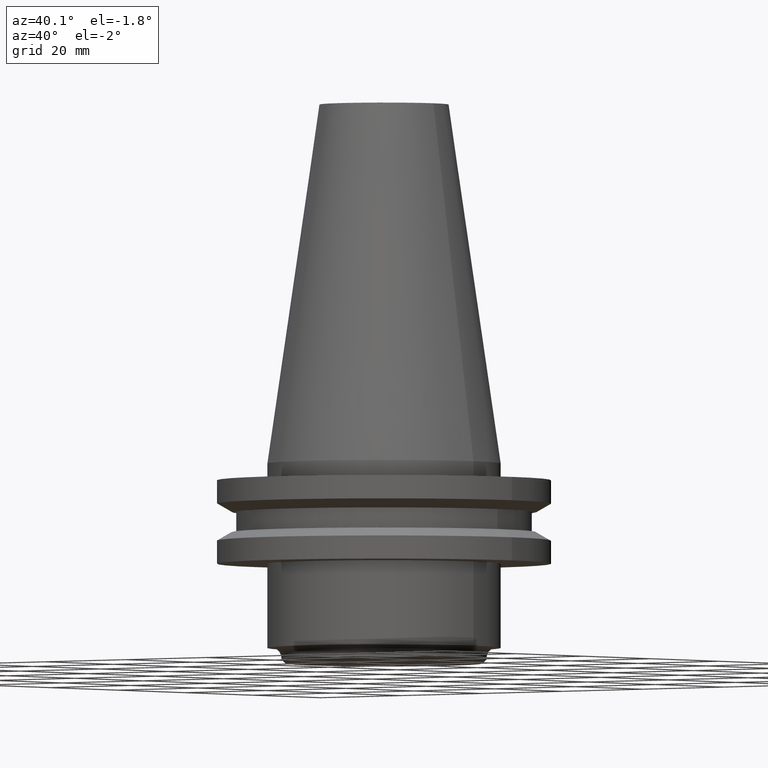
[diagram: clean part render]
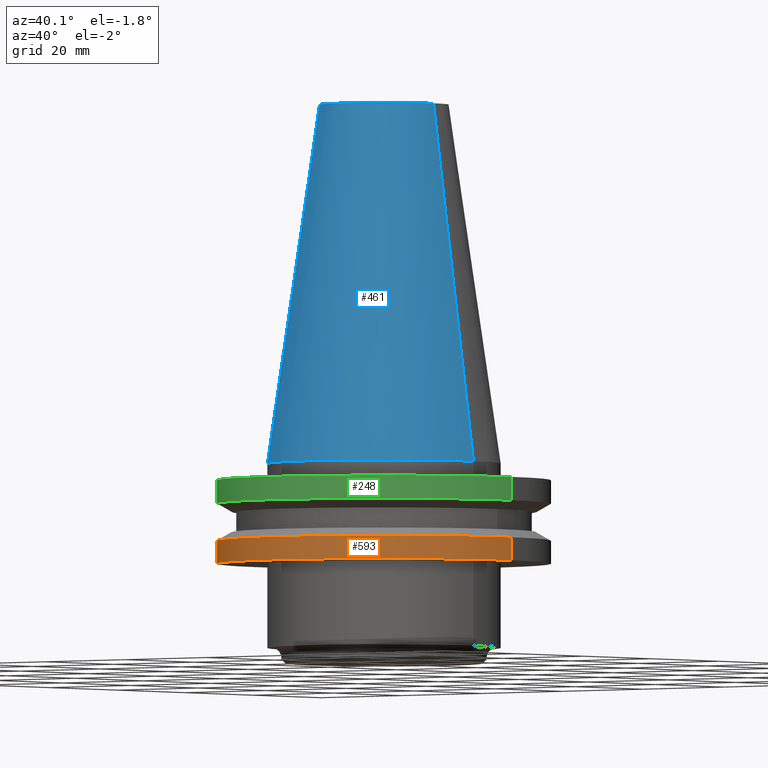
[diagram: same view with three faces highlighted in distinct colors, each labeled with its STEP entity id]
A machine part, auxiliary view with three faces highlighted in distinct colors.
Their STEP definitions:

[orange] entity #593 — the highlighted cylindrical surface (partial cylindrical patch) has radius 31.75 mm, axis along (-0, -0, 1).
#29 = CARTESIAN_POINT ( 'NONE',  ( -31.74999999999999289, 3.888253587292845687E-15, -19.04999999999999716 ) ) ;
#35 = AXIS2_PLACEMENT_3D ( 'NONE', #225, #346, #290 ) ;
#60 = CARTESIAN_POINT ( 'NONE',  ( 0.000000000000000000, 0.000000000000000000, -14.65472339340266572 ) ) ;
#72 = CARTESIAN_POINT ( 'NONE',  ( 0.000000000000000000, 0.000000000000000000, 68.25000000000000000 ) ) ;
#90 = VERTEX_POINT ( 'NONE', #618 ) ;
#100 = CIRCLE ( 'NONE', #35, 31.74999999999999289 ) ;
#172 = CARTESIAN_POINT ( 'NONE',  ( -31.75000000000000000, 3.888253587292846476E-15, 68.25000000000000000 ) ) ;
#175 = LINE ( 'NONE', #172, #200 ) ;
#176 = VECTOR ( 'NONE', #382, 1000.000000000000000 ) ;
#200 = VECTOR ( 'NONE', #637, 1000.000000000000000 ) ;
#214 = EDGE_CURVE ( 'NONE', #333, #650, #175, .T. ) ;
#225 = CARTESIAN_POINT ( 'NONE',  ( 0.000000000000000000, 0.000000000000000000, -19.04999999999999716 ) ) ;
#256 = EDGE_LOOP ( 'NONE', ( #423, #624, #525, #602 ) ) ;
#290 = DIRECTION ( 'NONE',  ( 1.000000000000000000, 0.000000000000000000, 0.000000000000000000 ) ) ;
#333 = VERTEX_POINT ( 'NONE', #29 ) ;
#345 = CARTESIAN_POINT ( 'NONE',  ( -31.75000000000000000, 3.888253587292846476E-15, -14.65472339340266572 ) ) ;
#346 = DIRECTION ( 'NONE',  ( -0.000000000000000000, -0.000000000000000000, 1.000000000000000000 ) ) ;
#382 = DIRECTION ( 'NONE',  ( -0.000000000000000000, -0.000000000000000000, 1.000000000000000000 ) ) ;
#423 = ORIENTED_EDGE ( 'NONE', *, *, #214, .F. ) ;
#441 = CARTESIAN_POINT ( 'NONE',  ( 31.75000000000000000, 0.000000000000000000, -14.65472339340266572 ) ) ;
#447 = DIRECTION ( 'NONE',  ( 1.000000000000000000, 0.000000000000000000, 0.000000000000000000 ) ) ;
#452 = CYLINDRICAL_SURFACE ( 'NONE', #607, 31.75000000000000000 ) ;
#495 = VERTEX_POINT ( 'NONE', #441 ) ;
#514 = EDGE_CURVE ( 'NONE', #90, #495, #634, .T. ) ;
#520 = EDGE_CURVE ( 'NONE', #650, #495, #684, .T. ) ;
#525 = ORIENTED_EDGE ( 'NONE', *, *, #514, .T. ) ;
#578 = AXIS2_PLACEMENT_3D ( 'NONE', #60, #763, #447 ) ;
#582 = FACE_OUTER_BOUND ( 'NONE', #256, .T. ) ;
#593 = ADVANCED_FACE ( 'NONE', ( #582 ), #452, .T. ) ;
#602 = ORIENTED_EDGE ( 'NONE', *, *, #520, .F. ) ;
#607 = AXIS2_PLACEMENT_3D ( 'NONE', #72, #704, #751 ) ;
#618 = CARTESIAN_POINT ( 'NONE',  ( 31.74999999999999289, 0.000000000000000000, -19.04999999999999716 ) ) ;
#624 = ORIENTED_EDGE ( 'NONE', *, *, #816, .T. ) ;
#634 = LINE ( 'NONE', #639, #176 ) ;
#637 = DIRECTION ( 'NONE',  ( -0.000000000000000000, -0.000000000000000000, 1.000000000000000000 ) ) ;
#639 = CARTESIAN_POINT ( 'NONE',  ( 31.75000000000000000, 0.000000000000000000, 68.25000000000000000 ) ) ;
#650 = VERTEX_POINT ( 'NONE', #345 ) ;
#684 = CIRCLE ( 'NONE', #578, 31.75000000000000000 ) ;
#704 = DIRECTION ( 'NONE',  ( -0.000000000000000000, -0.000000000000000000, 1.000000000000000000 ) ) ;
#751 = DIRECTION ( 'NONE',  ( 1.000000000000000000, 0.000000000000000000, 0.000000000000000000 ) ) ;
#763 = DIRECTION ( 'NONE',  ( -0.000000000000000000, -0.000000000000000000, 1.000000000000000000 ) ) ;
#816 = EDGE_CURVE ( 'NONE', #333, #90, #100, .T. ) ;

[blue] entity #461 — the highlighted conical surface has half-angle 8.297 deg.
#3 = DIRECTION ( 'NONE',  ( 1.000000000000000000, 0.000000000000000000, 0.000000000000000000 ) ) ;
#33 = AXIS2_PLACEMENT_3D ( 'NONE', #451, #696, #3 ) ;
#76 = CARTESIAN_POINT ( 'NONE',  ( -22.22500000000000142, 0.000000000000000000, 0.000000000000000000 ) ) ;
#85 = ORIENTED_EDGE ( 'NONE', *, *, #191, .F. ) ;
#94 = EDGE_CURVE ( 'NONE', #361, #739, #594, .T. ) ;
#95 = DIRECTION ( 'NONE',  ( -0.000000000000000000, -0.000000000000000000, 1.000000000000000000 ) ) ;
#113 = CIRCLE ( 'NONE', #33, 12.27178102086201150 ) ;
#155 = ORIENTED_EDGE ( 'NONE', *, *, #94, .T. ) ;
#160 = FACE_OUTER_BOUND ( 'NONE', #679, .T. ) ;
#191 = EDGE_CURVE ( 'NONE', #521, #203, #113, .T. ) ;
#199 = DIRECTION ( 'NONE',  ( 0.1443082272672999711, 1.767266086135276757E-17, -0.9895327864921755756 ) ) ;
#203 = VERTEX_POINT ( 'NONE', #384 ) ;
#210 = CARTESIAN_POINT ( 'NONE',  ( 22.22500000000000142, 2.721777511104992849E-15, 0.000000000000000000 ) ) ;
#216 = CARTESIAN_POINT ( 'NONE',  ( -22.22500000000000142, 0.000000000000000000, 0.000000000000000000 ) ) ;
#316 = EDGE_CURVE ( 'NONE', #521, #361, #667, .T. ) ;
#354 = ORIENTED_EDGE ( 'NONE', *, *, #316, .T. ) ;
#361 = VERTEX_POINT ( 'NONE', #216 ) ;
#378 = EDGE_CURVE ( 'NONE', #203, #739, #603, .T. ) ;
#384 = CARTESIAN_POINT ( 'NONE',  ( 12.27178102086201150, 2.112318622904291439E-15, 68.25000000000000000 ) ) ;
#402 = VECTOR ( 'NONE', #716, 999.9999999999998863 ) ;
#416 = DIRECTION ( 'NONE',  ( 0.000000000000000000, 0.000000000000000000, -1.000000000000000000 ) ) ;
#451 = CARTESIAN_POINT ( 'NONE',  ( 0.000000000000000000, 0.000000000000000000, 68.25000000000000000 ) ) ;
#461 = ADVANCED_FACE ( 'NONE', ( #160 ), #469, .T. ) ;
#469 = CONICAL_SURFACE ( 'NONE', #564, 22.22500000000000142, 0.1448138465474119174 ) ;
#472 = AXIS2_PLACEMENT_3D ( 'NONE', #728, #95, #723 ) ;
#480 = DIRECTION ( 'NONE',  ( -1.000000000000000000, 0.000000000000000000, 0.000000000000000000 ) ) ;
#484 = VECTOR ( 'NONE', #199, 999.9999999999998863 ) ;
#521 = VERTEX_POINT ( 'NONE', #589 ) ;
#538 = ORIENTED_EDGE ( 'NONE', *, *, #378, .F. ) ;
#564 = AXIS2_PLACEMENT_3D ( 'NONE', #795, #416, #480 ) ;
#588 = CARTESIAN_POINT ( 'NONE',  ( 22.22500000000000142, 2.721777511104992849E-15, 0.000000000000000000 ) ) ;
#589 = CARTESIAN_POINT ( 'NONE',  ( -12.27178102086201150, 0.000000000000000000, 68.25000000000000000 ) ) ;
#594 = CIRCLE ( 'NONE', #472, 22.22500000000000142 ) ;
#603 = LINE ( 'NONE', #210, #484 ) ;
#667 = LINE ( 'NONE', #76, #402 ) ;
#679 = EDGE_LOOP ( 'NONE', ( #538, #85, #354, #155 ) ) ;
#696 = DIRECTION ( 'NONE',  ( -0.000000000000000000, -0.000000000000000000, 1.000000000000000000 ) ) ;
#716 = DIRECTION ( 'NONE',  ( -0.1443082272672999711, 0.000000000000000000, -0.9895327864921755756 ) ) ;
#723 = DIRECTION ( 'NONE',  ( 1.000000000000000000, 0.000000000000000000, 0.000000000000000000 ) ) ;
#728 = CARTESIAN_POINT ( 'NONE',  ( 0.000000000000000000, 0.000000000000000000, 0.000000000000000000 ) ) ;
#739 = VERTEX_POINT ( 'NONE', #588 ) ;
#795 = CARTESIAN_POINT ( 'NONE',  ( 0.000000000000000000, 0.000000000000000000, 0.000000000000000000 ) ) ;

[green] entity #248 — the highlighted cylindrical surface (partial cylindrical patch) has radius 31.75 mm, axis along (-0, -0, 1).
#8 = DIRECTION ( 'NONE',  ( -0.000000000000000000, -0.000000000000000000, 1.000000000000000000 ) ) ;
#50 = CARTESIAN_POINT ( 'NONE',  ( -31.75000000000000000, 3.888253587292846476E-15, -3.174999999999997158 ) ) ;
#92 = LINE ( 'NONE', #294, #202 ) ;
#133 = CARTESIAN_POINT ( 'NONE',  ( 31.75000000000000000, 0.000000000000000000, -3.174999999999997158 ) ) ;
#157 = DIRECTION ( 'NONE',  ( -0.000000000000000000, -0.000000000000000000, 1.000000000000000000 ) ) ;
#194 = VERTEX_POINT ( 'NONE', #133 ) ;
#202 = VECTOR ( 'NONE', #548, 1000.000000000000000 ) ;
#209 = VERTEX_POINT ( 'NONE', #50 ) ;
#248 = ADVANCED_FACE ( 'NONE', ( #492 ), #431, .T. ) ;
#269 = ORIENTED_EDGE ( 'NONE', *, *, #811, .F. ) ;
#294 = CARTESIAN_POINT ( 'NONE',  ( -31.75000000000000000, 3.888253587292846476E-15, 68.25000000000000000 ) ) ;
#295 = ORIENTED_EDGE ( 'NONE', *, *, #676, .F. ) ;
#309 = VECTOR ( 'NONE', #712, 1000.000000000000000 ) ;
#339 = ORIENTED_EDGE ( 'NONE', *, *, #768, .T. ) ;
#371 = EDGE_CURVE ( 'NONE', #470, #194, #459, .T. ) ;
#422 = AXIS2_PLACEMENT_3D ( 'NONE', #797, #157, #600 ) ;
#431 = CYLINDRICAL_SURFACE ( 'NONE', #772, 31.75000000000000000 ) ;
#445 = CARTESIAN_POINT ( 'NONE',  ( -31.75000000000000000, 3.888253587292846476E-15, -7.605276606597335842 ) ) ;
#459 = LINE ( 'NONE', #770, #309 ) ;
#470 = VERTEX_POINT ( 'NONE', #697 ) ;
#483 = VERTEX_POINT ( 'NONE', #445 ) ;
#492 = FACE_OUTER_BOUND ( 'NONE', #540, .T. ) ;
#511 = CIRCLE ( 'NONE', #422, 31.75000000000000000 ) ;
#540 = EDGE_LOOP ( 'NONE', ( #269, #339, #649, #295 ) ) ;
#548 = DIRECTION ( 'NONE',  ( -0.000000000000000000, -0.000000000000000000, 1.000000000000000000 ) ) ;
#574 = CARTESIAN_POINT ( 'NONE',  ( 0.000000000000000000, 0.000000000000000000, -3.174999999999997158 ) ) ;
#600 = DIRECTION ( 'NONE',  ( 1.000000000000000000, 0.000000000000000000, 0.000000000000000000 ) ) ;
#628 = AXIS2_PLACEMENT_3D ( 'NONE', #574, #817, #631 ) ;
#631 = DIRECTION ( 'NONE',  ( 1.000000000000000000, 0.000000000000000000, 0.000000000000000000 ) ) ;
#649 = ORIENTED_EDGE ( 'NONE', *, *, #371, .T. ) ;
#676 = EDGE_CURVE ( 'NONE', #209, #194, #807, .T. ) ;
#686 = CARTESIAN_POINT ( 'NONE',  ( 0.000000000000000000, 0.000000000000000000, 68.25000000000000000 ) ) ;
#697 = CARTESIAN_POINT ( 'NONE',  ( 31.75000000000000000, 0.000000000000000000, -7.605276606597335842 ) ) ;
#699 = DIRECTION ( 'NONE',  ( 1.000000000000000000, 0.000000000000000000, 0.000000000000000000 ) ) ;
#712 = DIRECTION ( 'NONE',  ( -0.000000000000000000, -0.000000000000000000, 1.000000000000000000 ) ) ;
#768 = EDGE_CURVE ( 'NONE', #483, #470, #511, .T. ) ;
#770 = CARTESIAN_POINT ( 'NONE',  ( 31.75000000000000000, 0.000000000000000000, 68.25000000000000000 ) ) ;
#772 = AXIS2_PLACEMENT_3D ( 'NONE', #686, #8, #699 ) ;
#797 = CARTESIAN_POINT ( 'NONE',  ( 0.000000000000000000, 0.000000000000000000, -7.605276606597335842 ) ) ;
#807 = CIRCLE ( 'NONE', #628, 31.75000000000000000 ) ;
#811 = EDGE_CURVE ( 'NONE', #483, #209, #92, .T. ) ;
#817 = DIRECTION ( 'NONE',  ( -0.000000000000000000, -0.000000000000000000, 1.000000000000000000 ) ) ;